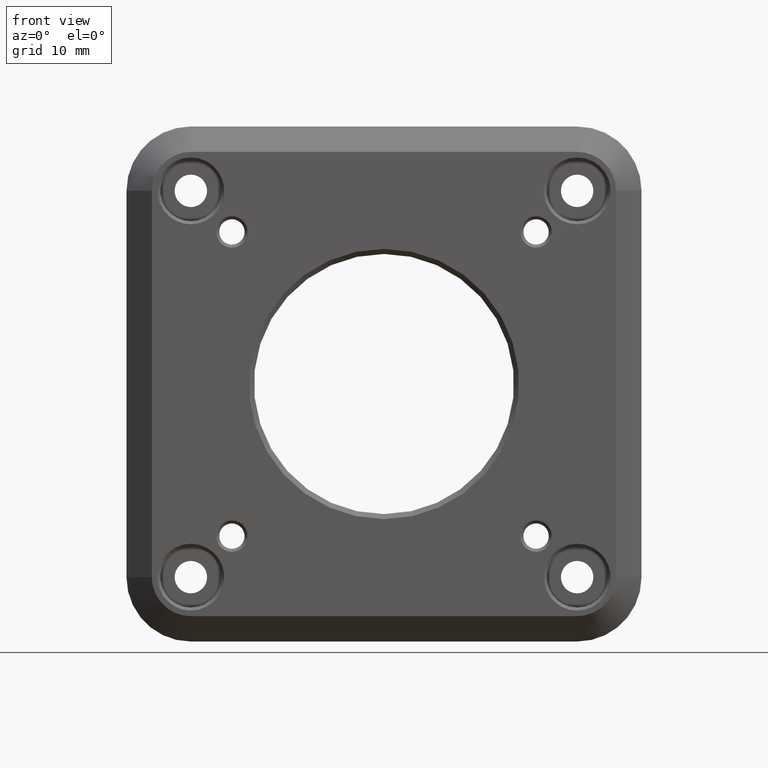
[diagram: clean part render]
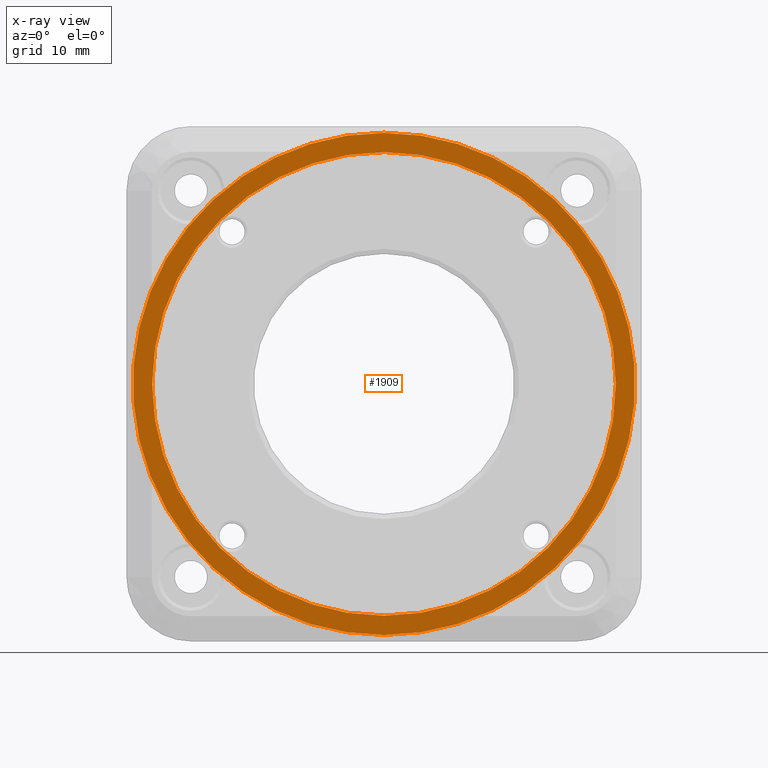
[diagram: x-ray — body ghosted, one internal face saturated and labeled with its STEP entity id]
A machine part, front view, then the same camera in x-ray: the body is ghosted and one INTERNAL B-rep face — a face not visible from any outside direction — is saturated and labeled: STEP entity #1909.
In plain terms, the highlighted planar face has unit normal (0, 1, 0).
Its self-contained STEP definition (entity closure, byte-faithful):
#88 = CARTESIAN_POINT ( 'NONE',  ( 0.000000000000000000, 4.080000000000000071, 0.000000000000000000 ) ) ;
#173 = VERTEX_POINT ( 'NONE', #1261 ) ;
#197 = CARTESIAN_POINT ( 'NONE',  ( 0.000000000000000000, 4.080000000000000071, 0.000000000000000000 ) ) ;
#292 = DIRECTION ( 'NONE',  ( 0.000000000000000000, -0.000000000000000000, 1.000000000000000000 ) ) ;
#306 = CARTESIAN_POINT ( 'NONE',  ( 0.000000000000000000, 4.080000000000000071, 0.000000000000000000 ) ) ;
#382 = AXIS2_PLACEMENT_3D ( 'NONE', #3295, #2644, #769 ) ;
#411 = AXIS2_PLACEMENT_3D ( 'NONE', #197, #2073, #498 ) ;
#498 = DIRECTION ( 'NONE',  ( 0.000000000000000000, 0.000000000000000000, 1.000000000000000000 ) ) ;
#599 = EDGE_CURVE ( 'NONE', #1864, #173, #2354, .T. ) ;
#660 = ORIENTED_EDGE ( 'NONE', *, *, #3027, .F. ) ;
#745 = AXIS2_PLACEMENT_3D ( 'NONE', #306, #3121, #1250 ) ;
#769 = DIRECTION ( 'NONE',  ( 0.000000000000000000, 0.000000000000000000, 1.000000000000000000 ) ) ;
#972 = CIRCLE ( 'NONE', #745, 24.76500000000000412 ) ;
#1250 = DIRECTION ( 'NONE',  ( 0.000000000000000000, 0.000000000000000000, 1.000000000000000000 ) ) ;
#1261 = CARTESIAN_POINT ( 'NONE',  ( 2.799542582850849100E-15, 4.080000000000000071, -22.85999999999999943 ) ) ;
#1395 = CARTESIAN_POINT ( 'NONE',  ( 3.032837798088421009E-15, 4.080000000000000071, -24.76500000000000412 ) ) ;
#1470 = EDGE_LOOP ( 'NONE', ( #1805, #660 ) ) ;
#1547 = CARTESIAN_POINT ( 'NONE',  ( 0.000000000000000000, 4.080000000000000071, 0.000000000000000000 ) ) ;
#1805 = ORIENTED_EDGE ( 'NONE', *, *, #599, .F. ) ;
#1810 = AXIS2_PLACEMENT_3D ( 'NONE', #1547, #4021, #292 ) ;
#1864 = VERTEX_POINT ( 'NONE', #1866 ) ;
#1866 = CARTESIAN_POINT ( 'NONE',  ( 0.000000000000000000, 4.080000000000000071, 22.85999999999999943 ) ) ;
#1909 = ADVANCED_FACE ( 'NONE', ( #2640, #3877 ), #2667, .T. ) ;
#1945 = EDGE_CURVE ( 'NONE', #3976, #2227, #972, .T. ) ;
#1953 = AXIS2_PLACEMENT_3D ( 'NONE', #88, #3534, #1963 ) ;
#1963 = DIRECTION ( 'NONE',  ( 0.000000000000000000, 0.000000000000000000, 1.000000000000000000 ) ) ;
#2073 = DIRECTION ( 'NONE',  ( 0.000000000000000000, 1.000000000000000000, 0.000000000000000000 ) ) ;
#2227 = VERTEX_POINT ( 'NONE', #2726 ) ;
#2354 = CIRCLE ( 'NONE', #411, 22.85999999999999943 ) ;
#2629 = ORIENTED_EDGE ( 'NONE', *, *, #1945, .T. ) ;
#2640 = FACE_BOUND ( 'NONE', #1470, .T. ) ;
#2644 = DIRECTION ( 'NONE',  ( 0.000000000000000000, 1.000000000000000000, 0.000000000000000000 ) ) ;
#2667 = PLANE ( 'NONE',  #1810 ) ;
#2726 = CARTESIAN_POINT ( 'NONE',  ( 0.000000000000000000, 4.080000000000000071, 24.76500000000000412 ) ) ;
#2796 = EDGE_CURVE ( 'NONE', #2227, #3976, #3887, .T. ) ;
#2861 = EDGE_LOOP ( 'NONE', ( #3303, #2629 ) ) ;
#3027 = EDGE_CURVE ( 'NONE', #173, #1864, #3870, .T. ) ;
#3121 = DIRECTION ( 'NONE',  ( 0.000000000000000000, 1.000000000000000000, 0.000000000000000000 ) ) ;
#3295 = CARTESIAN_POINT ( 'NONE',  ( 0.000000000000000000, 4.080000000000000071, 0.000000000000000000 ) ) ;
#3303 = ORIENTED_EDGE ( 'NONE', *, *, #2796, .T. ) ;
#3534 = DIRECTION ( 'NONE',  ( 0.000000000000000000, 1.000000000000000000, 0.000000000000000000 ) ) ;
#3870 = CIRCLE ( 'NONE', #382, 22.85999999999999943 ) ;
#3877 = FACE_OUTER_BOUND ( 'NONE', #2861, .T. ) ;
#3887 = CIRCLE ( 'NONE', #1953, 24.76500000000000412 ) ;
#3976 = VERTEX_POINT ( 'NONE', #1395 ) ;
#4021 = DIRECTION ( 'NONE',  ( 0.000000000000000000, 1.000000000000000000, 0.000000000000000000 ) ) ;